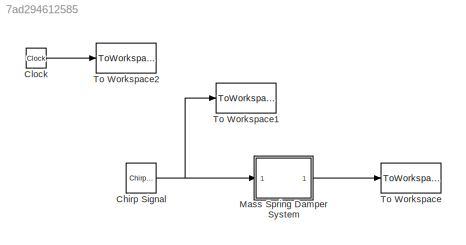
MODEL slx_7ad294612585
KIND model
CONFIG InitFcn = massSpringDamper_init;
CONFIG StopFcn = massSpringDamper_stop;
BLOCK [Reference] Chirp Signal  REF=simulink/Sources/Chirp Signal
  Ports = [0, 1]
  SourceBlock = simulink/Sources/Chirp Signal
  SourceType = chirp
  T = experimentStopTime
  VectorParams1D = on
  f1 = wmin
  f2 = wmax
BLOCK [Clock] Clock
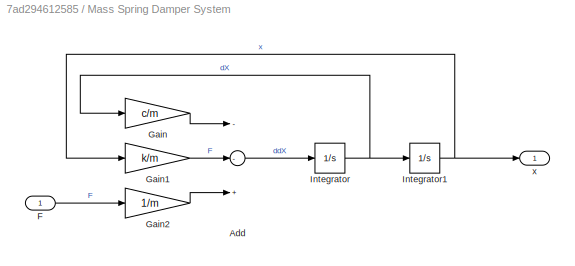
BLOCK [SubSystem] Mass Spring Damper System
  FunctionWithSeparateData = off
  MaskHideContents = off
  MinAlgLoopOccurrences = off
  Opaque = off
  Ports = [1, 1]
  PropExecContextOutsideSubsystem = off
  RTWSystemCode = Auto
  RequestExecContextInheritance = off
BLOCK [Sum] Mass Spring Damper System/Add
  InputSameDT = off
  Inputs = --+
  OutDataTypeStr = Inherit: Inherit via internal rule
  Ports = [3, 1]
  SaturateOnIntegerOverflow = off
BLOCK [Inport] Mass Spring Damper System/F
  IconDisplay = Port number
BLOCK [Gain] Mass Spring Damper System/Gain
  Gain = c/m
  OutDataTypeStr = Inherit: Inherit via internal rule
  ParamDataTypeStr = Inherit: Inherit via internal rule
  SaturateOnIntegerOverflow = off
BLOCK [Gain] Mass Spring Damper System/Gain1
  Gain = k/m
  OutDataTypeStr = Inherit: Inherit via internal rule
  ParamDataTypeStr = Inherit: Inherit via internal rule
  SaturateOnIntegerOverflow = off
BLOCK [Gain] Mass Spring Damper System/Gain2
  Gain = 1/m
  OutDataTypeStr = Inherit: Inherit via internal rule
  ParamDataTypeStr = Inherit: Inherit via internal rule
  SaturateOnIntegerOverflow = off
BLOCK [Integrator] Mass Spring Damper System/Integrator
  Ports = [1, 1]
BLOCK [Integrator] Mass Spring Damper System/Integrator1
  Ports = [1, 1]
BLOCK [Outport] Mass Spring Damper System/x
  IconDisplay = Port number
BLOCK [ToWorkspace] To Workspace
  MaxDataPoints = inf
  Ports = [1]
  SampleTime = -1
  VariableName = x_sim
BLOCK [ToWorkspace] To Workspace1
  MaxDataPoints = inf
  Ports = [1]
  SampleTime = -1
  VariableName = F_sim
BLOCK [ToWorkspace] To Workspace2
  MaxDataPoints = inf
  Ports = [1]
  SampleTime = -1
  VariableName = time_sim
NET Chirp Signal:1 -> Mass Spring Damper System:1, To Workspace1:1
LINE Clock:1 -> To Workspace2:1
LINE Mass Spring Damper System/Add:1 -> Mass Spring Damper System/Integrator:1
LINE Mass Spring Damper System/F:1 -> Mass Spring Damper System/Gain2:1
LINE Mass Spring Damper System/Gain1:1 -> Mass Spring Damper System/Add:2
LINE Mass Spring Damper System/Gain2:1 -> Mass Spring Damper System/Add:3
LINE Mass Spring Damper System/Gain:1 -> Mass Spring Damper System/Add:1
NET Mass Spring Damper System/Integrator1:1 -> Mass Spring Damper System/Gain1:1, Mass Spring Damper System/x:1
NET Mass Spring Damper System/Integrator:1 -> Mass Spring Damper System/Gain:1, Mass Spring Damper System/Integrator1:1
LINE Mass Spring Damper System:1 -> To Workspace:1
note: NET lines group one-source signal fan-out (src -> all destinations, sorted); 1:1 wires keep LINE
